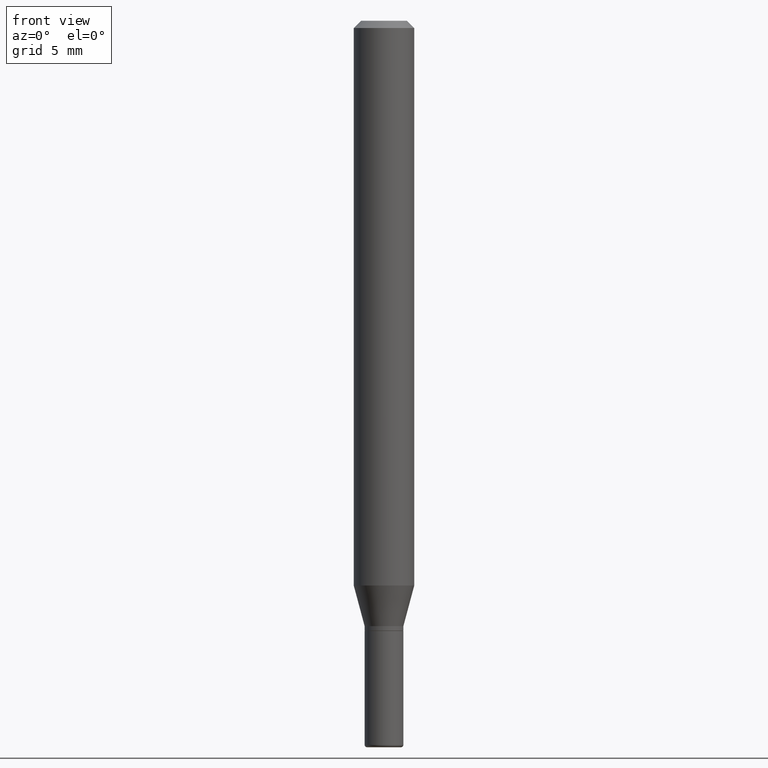
[diagram: clean part render]
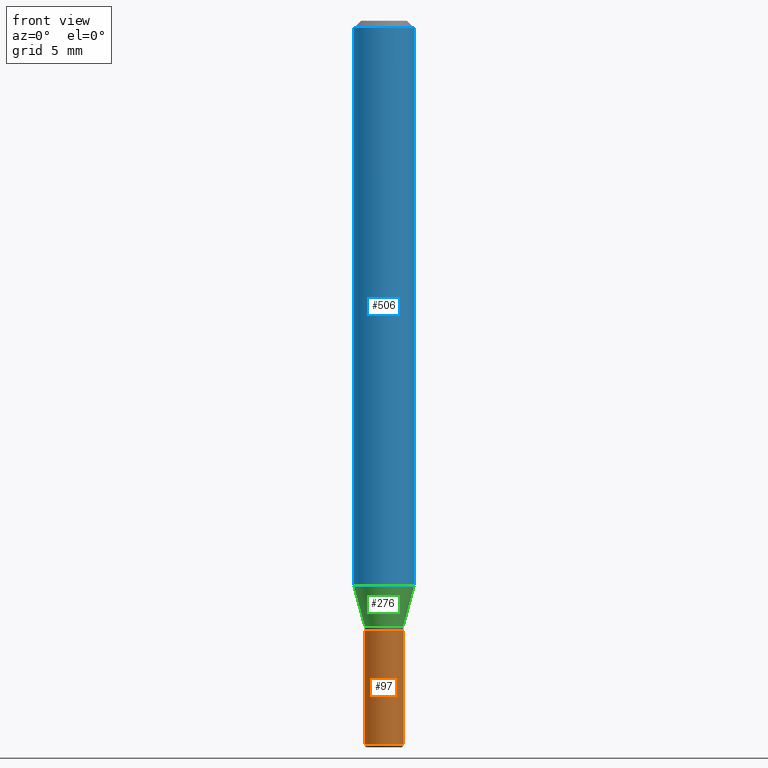
[diagram: same view with three faces highlighted in distinct colors, each labeled with its STEP entity id]
A machine part, front view with three faces highlighted in distinct colors.
Their STEP definitions:

[orange] entity #97 — the highlighted cylindrical surface (edge-blend (fillet) strip) has radius 1.016 mm, axis along (-0, 0, 1).
#7 = CARTESIAN_POINT ( 'NONE',  ( -0.04000000000000000083, -4.525298449952393698E-15, -1.260000000000000231 ) ) ;
#42 = AXIS2_PLACEMENT_3D ( 'NONE', #427, #237, #194 ) ;
#47 = CARTESIAN_POINT ( 'NONE',  ( 0.04000000000000000083, -4.678584994049814947E-15, -1.260000000000000231 ) ) ;
#72 = CARTESIAN_POINT ( 'NONE',  ( -0.03999999999999995226, 2.842170943040397351E-16, -1.967574036101960057E-30 ) ) ;
#85 = DIRECTION ( 'NONE',  ( -2.445468806185136597E-29, 3.491481338843145583E-15, 1.000000000000000000 ) ) ;
#97 = ADVANCED_FACE ( 'NONE', ( #122 ), #284, .T. ) ;
#106 = CARTESIAN_POINT ( 'NONE',  ( 3.655975865246779683E-29, -5.219764601570503930E-15, -1.495000000000000329 ) ) ;
#122 = FACE_OUTER_BOUND ( 'NONE', #431, .T. ) ;
#125 = VERTEX_POINT ( 'NONE', #47 ) ;
#159 = VERTEX_POINT ( 'NONE', #7 ) ;
#160 = CIRCLE ( 'NONE', #250, 0.03999999999999989675 ) ;
#190 = VERTEX_POINT ( 'NONE', #219 ) ;
#194 = DIRECTION ( 'NONE',  ( 1.000000000000000000, -6.982962677686259611E-15, 0.000000000000000000 ) ) ;
#218 = CARTESIAN_POINT ( 'NONE',  ( -0.03999999999999989675, -4.525298449952393698E-15, -1.495000000000000329 ) ) ;
#219 = CARTESIAN_POINT ( 'NONE',  ( 0.03999999999999989675, -5.499083108677954756E-15, -1.495000000000000329 ) ) ;
#237 = DIRECTION ( 'NONE',  ( -2.445468806185136597E-29, 3.491481338843145583E-15, 1.000000000000000000 ) ) ;
#249 = DIRECTION ( 'NONE',  ( 1.000000000000000000, -6.982962677686266711E-15, 4.876176775795935793E-29 ) ) ;
#250 = AXIS2_PLACEMENT_3D ( 'NONE', #106, #314, #306 ) ;
#252 = CARTESIAN_POINT ( 'NONE',  ( 0.000000000000000000, 0.000000000000000000, 0.000000000000000000 ) ) ;
#284 = CYLINDRICAL_SURFACE ( 'NONE', #509, 0.03999999999999995226 ) ;
#306 = DIRECTION ( 'NONE',  ( 1.000000000000000000, -6.982962677686277755E-15, 0.000000000000000000 ) ) ;
#310 = VECTOR ( 'NONE', #496, 39.37007874015748143 ) ;
#314 = DIRECTION ( 'NONE',  ( -2.445468806185136597E-29, 3.491481338843145583E-15, 1.000000000000000000 ) ) ;
#316 = ORIENTED_EDGE ( 'NONE', *, *, #437, .F. ) ;
#335 = EDGE_CURVE ( 'NONE', #190, #125, #492, .T. ) ;
#343 = ORIENTED_EDGE ( 'NONE', *, *, #335, .T. ) ;
#346 = DIRECTION ( 'NONE',  ( -2.445468806185136877E-29, 3.491481338843145188E-15, 1.000000000000000000 ) ) ;
#392 = ORIENTED_EDGE ( 'NONE', *, *, #409, .T. ) ;
#409 = EDGE_CURVE ( 'NONE', #501, #190, #160, .T. ) ;
#415 = CARTESIAN_POINT ( 'NONE',  ( 0.03999999999999995226, -2.793185071074503332E-16, 1.950470710318371935E-30 ) ) ;
#427 = CARTESIAN_POINT ( 'NONE',  ( 3.081290695793272291E-29, -4.399266486942364120E-15, -1.260000000000000231 ) ) ;
#431 = EDGE_LOOP ( 'NONE', ( #316, #392, #343, #435 ) ) ;
#435 = ORIENTED_EDGE ( 'NONE', *, *, #444, .F. ) ;
#437 = EDGE_CURVE ( 'NONE', #501, #159, #464, .T. ) ;
#444 = EDGE_CURVE ( 'NONE', #159, #125, #466, .T. ) ;
#447 = VECTOR ( 'NONE', #346, 39.37007874015748143 ) ;
#464 = LINE ( 'NONE', #72, #447 ) ;
#466 = CIRCLE ( 'NONE', #42, 0.04000000000000000083 ) ;
#492 = LINE ( 'NONE', #415, #310 ) ;
#496 = DIRECTION ( 'NONE',  ( -2.445468806185136877E-29, 3.491481338843145188E-15, 1.000000000000000000 ) ) ;
#501 = VERTEX_POINT ( 'NONE', #218 ) ;
#509 = AXIS2_PLACEMENT_3D ( 'NONE', #252, #85, #249 ) ;

[blue] entity #506 — the highlighted cylindrical surface (edge-blend (fillet) strip) has radius 1.5875 mm, axis along (-0, 0, 1).
#12 = DIRECTION ( 'NONE',  ( -2.445468806185136597E-29, 3.491481338843145583E-15, 1.000000000000000000 ) ) ;
#13 = CIRCLE ( 'NONE', #91, 0.06250000000000000000 ) ;
#17 = CARTESIAN_POINT ( 'NONE',  ( -0.06250000000000000000, -3.627078784323440528E-15, -1.166028856829699700 ) ) ;
#31 = ORIENTED_EDGE ( 'NONE', *, *, #165, .T. ) ;
#38 = VERTEX_POINT ( 'NONE', #83 ) ;
#70 = ORIENTED_EDGE ( 'NONE', *, *, #265, .F. ) ;
#83 = CARTESIAN_POINT ( 'NONE',  ( 0.06250000000000000000, -4.507603161528894025E-15, -1.166028856829699700 ) ) ;
#91 = AXIS2_PLACEMENT_3D ( 'NONE', #181, #226, #331 ) ;
#98 = AXIS2_PLACEMENT_3D ( 'NONE', #168, #326, #482 ) ;
#103 = DIRECTION ( 'NONE',  ( 1.000000000000000000, -6.982962677686266711E-15, 4.876176775795935793E-29 ) ) ;
#111 = VECTOR ( 'NONE', #339, 39.37007874015748143 ) ;
#134 = CARTESIAN_POINT ( 'NONE',  ( -0.06250000000000000000, -1.617680897278011707E-15, -0.01499999999999970281 ) ) ;
#138 = EDGE_CURVE ( 'NONE', #508, #38, #348, .T. ) ;
#141 = ORIENTED_EDGE ( 'NONE', *, *, #138, .T. ) ;
#148 = CARTESIAN_POINT ( 'NONE',  ( 0.000000000000000000, 0.000000000000000000, 0.000000000000000000 ) ) ;
#165 = EDGE_CURVE ( 'NONE', #38, #308, #216, .T. ) ;
#168 = CARTESIAN_POINT ( 'NONE',  ( 2.851487196488745443E-29, -4.071167994173502356E-15, -1.166028856829699700 ) ) ;
#181 = CARTESIAN_POINT ( 'NONE',  ( 3.668203209277632395E-31, -5.237222008264614861E-17, -0.01499999999999970281 ) ) ;
#216 = LINE ( 'NONE', #255, #475 ) ;
#226 = DIRECTION ( 'NONE',  ( -2.445468806185136597E-29, 3.491481338843145583E-15, 1.000000000000000000 ) ) ;
#241 = EDGE_LOOP ( 'NONE', ( #70, #141, #31, #347 ) ) ;
#255 = CARTESIAN_POINT ( 'NONE',  ( 0.06250000000000000000, -4.364351673553916694E-16, 3.047610484872459871E-30 ) ) ;
#265 = EDGE_CURVE ( 'NONE', #508, #288, #370, .T. ) ;
#280 = EDGE_CURVE ( 'NONE', #288, #308, #13, .T. ) ;
#288 = VERTEX_POINT ( 'NONE', #134 ) ;
#308 = VERTEX_POINT ( 'NONE', #488 ) ;
#326 = DIRECTION ( 'NONE',  ( -2.445468806185136597E-29, 3.491481338843145583E-15, 1.000000000000000000 ) ) ;
#331 = DIRECTION ( 'NONE',  ( 1.000000000000000000, -6.982962677686266711E-15, 0.000000000000000000 ) ) ;
#339 = DIRECTION ( 'NONE',  ( -2.445468806185136877E-29, 3.491481338843145188E-15, 1.000000000000000000 ) ) ;
#342 = CARTESIAN_POINT ( 'NONE',  ( -0.06250000000000000000, 4.440892098500626162E-16, -3.074334431409316114E-30 ) ) ;
#347 = ORIENTED_EDGE ( 'NONE', *, *, #280, .F. ) ;
#348 = CIRCLE ( 'NONE', #98, 0.06250000000000000000 ) ;
#367 = DIRECTION ( 'NONE',  ( -2.445468806185136877E-29, 3.491481338843145188E-15, 1.000000000000000000 ) ) ;
#370 = LINE ( 'NONE', #342, #111 ) ;
#417 = CYLINDRICAL_SURFACE ( 'NONE', #477, 0.06250000000000000000 ) ;
#455 = FACE_OUTER_BOUND ( 'NONE', #241, .T. ) ;
#475 = VECTOR ( 'NONE', #367, 39.37007874015748143 ) ;
#477 = AXIS2_PLACEMENT_3D ( 'NONE', #148, #12, #103 ) ;
#482 = DIRECTION ( 'NONE',  ( 1.000000000000000000, -6.982962677686262766E-15, 0.000000000000000000 ) ) ;
#488 = CARTESIAN_POINT ( 'NONE',  ( 0.06250000000000000000, -4.888073874380378612E-16, -0.01499999999999970281 ) ) ;
#506 = ADVANCED_FACE ( 'NONE', ( #455 ), #417, .T. ) ;
#508 = VERTEX_POINT ( 'NONE', #17 ) ;

[green] entity #276 — the highlighted conical surface has half-angle 15 deg.
#17 = CARTESIAN_POINT ( 'NONE',  ( -0.06250000000000000000, -3.627078784323440528E-15, -1.166028856829699700 ) ) ;
#38 = VERTEX_POINT ( 'NONE', #83 ) ;
#40 = DIRECTION ( 'NONE',  ( 0.2588190451025207395, 1.565188264969626109E-15, 0.9659258262890682012 ) ) ;
#63 = ORIENTED_EDGE ( 'NONE', *, *, #119, .F. ) ;
#77 = DIRECTION ( 'NONE',  ( 1.000000000000000000, -6.982962677686260400E-15, 0.000000000000000000 ) ) ;
#83 = CARTESIAN_POINT ( 'NONE',  ( 0.06250000000000000000, -4.507603161528894025E-15, -1.166028856829699700 ) ) ;
#98 = AXIS2_PLACEMENT_3D ( 'NONE', #168, #326, #482 ) ;
#119 = EDGE_CURVE ( 'NONE', #478, #508, #404, .T. ) ;
#121 = DIRECTION ( 'NONE',  ( -0.2588190451025207395, 5.211531920934546309E-15, 0.9659258262890682012 ) ) ;
#129 = EDGE_CURVE ( 'NONE', #504, #38, #364, .T. ) ;
#132 = CIRCLE ( 'NONE', #273, 0.03999999999999993144 ) ;
#138 = EDGE_CURVE ( 'NONE', #508, #38, #348, .T. ) ;
#140 = FACE_OUTER_BOUND ( 'NONE', #345, .T. ) ;
#168 = CARTESIAN_POINT ( 'NONE',  ( 2.851487196488745443E-29, -4.071167994173502356E-15, -1.166028856829699700 ) ) ;
#184 = VECTOR ( 'NONE', #121, 39.37007874015748854 ) ;
#210 = CARTESIAN_POINT ( 'NONE',  ( -0.03999999999999993144, -4.080134579249892145E-15, -1.249999999999999778 ) ) ;
#212 = CARTESIAN_POINT ( 'NONE',  ( 0.03999999999999993144, -4.643670180661380931E-15, -1.249999999999999778 ) ) ;
#273 = AXIS2_PLACEMENT_3D ( 'NONE', #424, #383, #77 ) ;
#276 = ADVANCED_FACE ( 'NONE', ( #140 ), #371, .T. ) ;
#283 = VECTOR ( 'NONE', #40, 39.37007874015748854 ) ;
#286 = ORIENTED_EDGE ( 'NONE', *, *, #411, .T. ) ;
#293 = CARTESIAN_POINT ( 'NONE',  ( 3.056836007731420185E-29, -4.364351673553931682E-15, -1.249999999999999778 ) ) ;
#302 = CARTESIAN_POINT ( 'NONE',  ( 0.03999999999999993144, -4.643670180661380931E-15, -1.249999999999999778 ) ) ;
#326 = DIRECTION ( 'NONE',  ( -2.445468806185136597E-29, 3.491481338843145583E-15, 1.000000000000000000 ) ) ;
#345 = EDGE_LOOP ( 'NONE', ( #63, #286, #355, #399 ) ) ;
#348 = CIRCLE ( 'NONE', #98, 0.06250000000000000000 ) ;
#355 = ORIENTED_EDGE ( 'NONE', *, *, #129, .T. ) ;
#364 = LINE ( 'NONE', #212, #283 ) ;
#366 = AXIS2_PLACEMENT_3D ( 'NONE', #293, #453, #452 ) ;
#371 = CONICAL_SURFACE ( 'NONE', #366, 0.03999999999999993144, 0.2617993877991494633 ) ;
#383 = DIRECTION ( 'NONE',  ( -2.445468806185136597E-29, 3.491481338843145583E-15, 1.000000000000000000 ) ) ;
#399 = ORIENTED_EDGE ( 'NONE', *, *, #138, .F. ) ;
#404 = LINE ( 'NONE', #210, #184 ) ;
#411 = EDGE_CURVE ( 'NONE', #478, #504, #132, .T. ) ;
#424 = CARTESIAN_POINT ( 'NONE',  ( 3.056836007731420185E-29, -4.364351673553931682E-15, -1.249999999999999778 ) ) ;
#452 = DIRECTION ( 'NONE',  ( 1.000000000000000000, -6.982962677686260400E-15, 0.000000000000000000 ) ) ;
#453 = DIRECTION ( 'NONE',  ( -2.445468806185136597E-29, 3.491481338843145583E-15, 1.000000000000000000 ) ) ;
#459 = CARTESIAN_POINT ( 'NONE',  ( -0.03999999999999993144, -3.853606681786666336E-15, -1.249999999999999778 ) ) ;
#478 = VERTEX_POINT ( 'NONE', #459 ) ;
#482 = DIRECTION ( 'NONE',  ( 1.000000000000000000, -6.982962677686262766E-15, 0.000000000000000000 ) ) ;
#504 = VERTEX_POINT ( 'NONE', #302 ) ;
#508 = VERTEX_POINT ( 'NONE', #17 ) ;